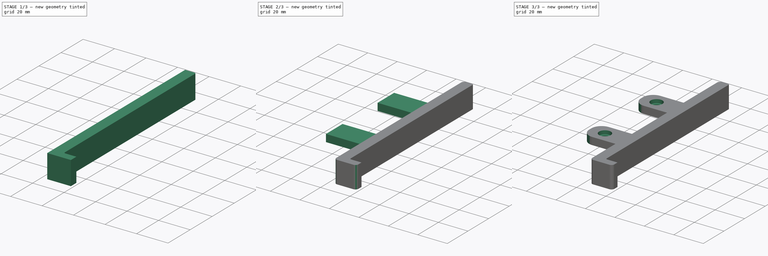
[diagram: build sequence overview — one tinted view per stage of 3, left to right]
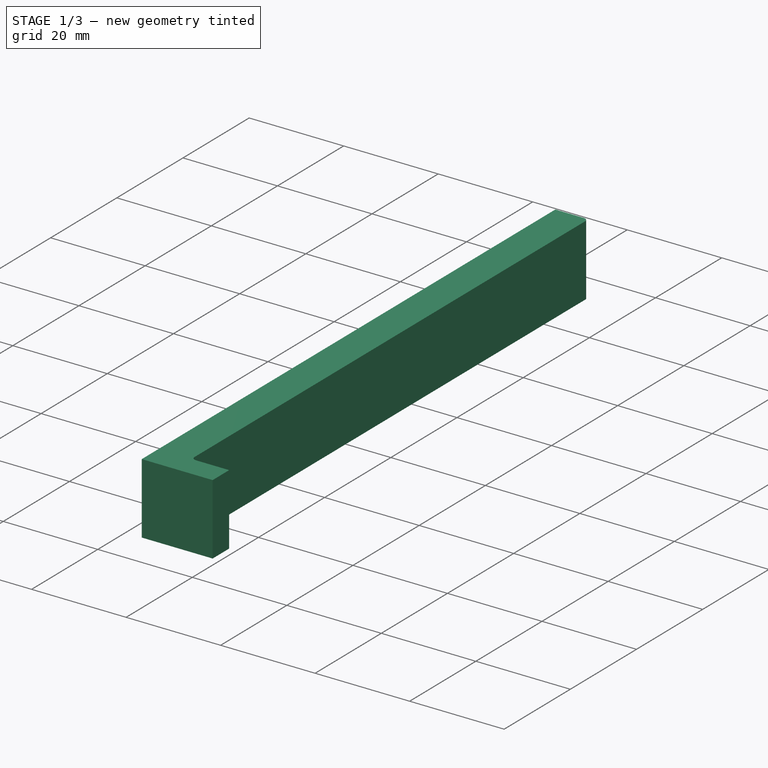
[diagram: stage 1 of 3 — iso view after this stage's code; geometry added in this stage tinted green]
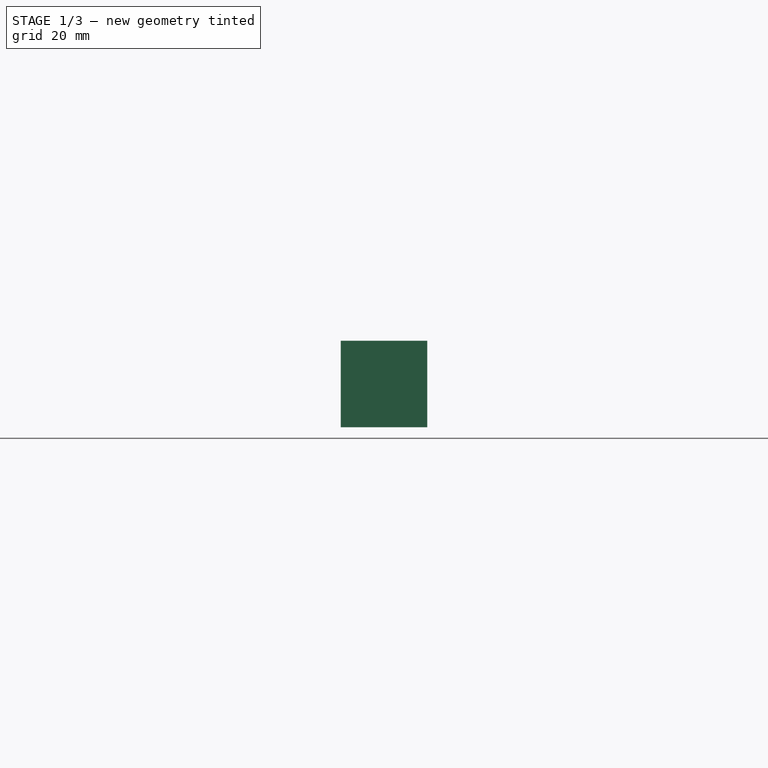
[diagram: stage 1 of 3 — front view after this stage's code; geometry added in this stage tinted green]
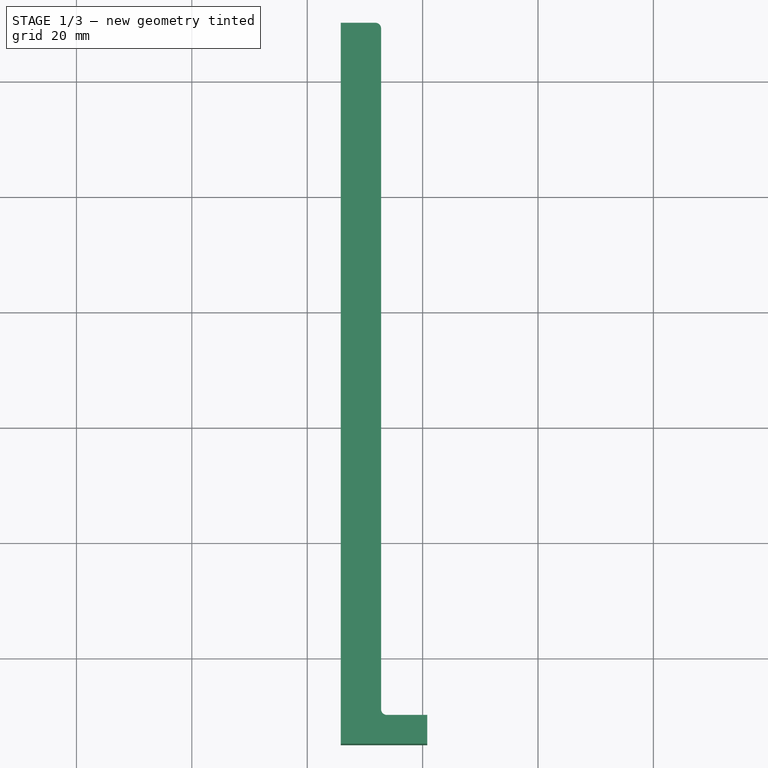
[diagram: stage 1 of 3 — top view after this stage's code; geometry added in this stage tinted green]
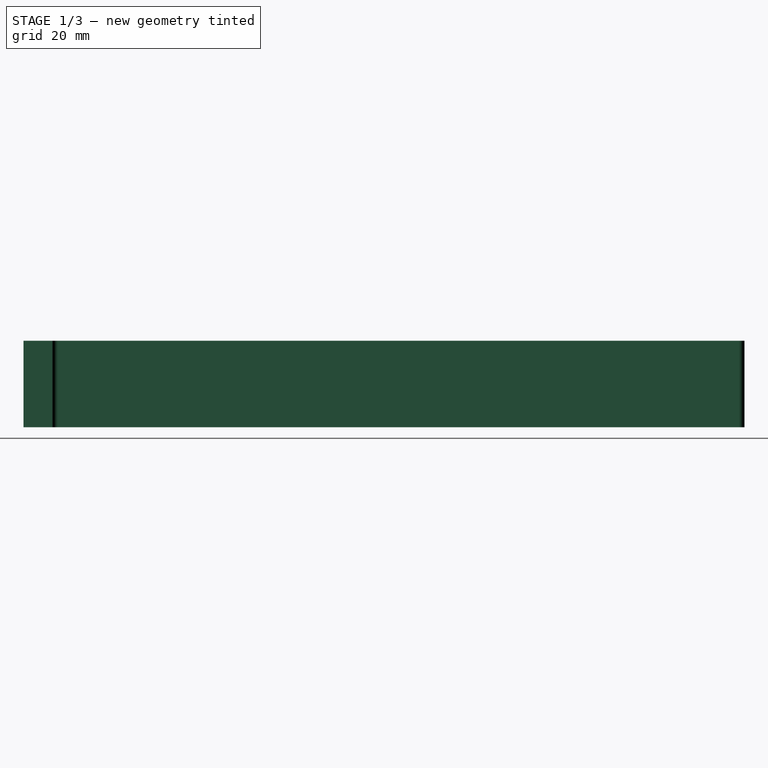
[diagram: stage 1 of 3 — right view after this stage's code; geometry added in this stage tinted green]
FCSTD DOCUMENT  (FreeCAD 1.1R20260414 (Git shallow))
Label: Unnamed2
License: All rights reserved
LicenseURL: https://en.wikipedia.org/wiki/All_rights_reserved
objects: PartDesign::Fillet×4, Sketcher::SketchObject×3, PartDesign::Pad×2, App::Point×1, PartDesign::Hole×1, PartDesign::Body×1
note: 28 computed .brp shape members not serialized (recipe doc carries the construction recipe); baked Part::Feature solids carry a one-line shape summary decoded from their .brp

FEATURE [App::Point] Origin001
  Role = Origin
FEATURE [Sketcher::SketchObject] Sketch
  ArcFitTolerance = 1e-06
  AttachmentSupport = -> [Origin]
  ExternalTypes = [0]
  FullyConstrained = true
  MakeInternals = false
  MapMode = 5
  _ExternalGeoVersion = 1
  sketch-geometry (7):
    g0: LineSegment StartX=32.81 StartY=-70 StartZ=0 EndX=32.81 EndY=50 EndZ=0
    g1: LineSegment StartX=32.81 StartY=50 StartZ=0 EndX=25.81 EndY=50 EndZ=0
    g2: LineSegment StartX=25.81 StartY=50 StartZ=0 EndX=25.81 EndY=-75 EndZ=0
    g3: GeomPoint [constr] X=0 Y=0 Z=0
    g4: LineSegment StartX=25.81 StartY=-75 StartZ=0 EndX=40.81 EndY=-75 EndZ=0
    g5: LineSegment StartX=40.81 StartY=-75 StartZ=0 EndX=40.81 EndY=-70 EndZ=0
    g6: LineSegment StartX=40.81 StartY=-70 StartZ=0 EndX=32.81 EndY=-70 EndZ=0
  constraints (19):
    c: Coincident(g0,g1)
    c: Coincident(g1,g2)
    c: Horizontal(g1)
    c: Vertical(g0)
    c: Vertical(g2)
    c: Coincident(g3,g-1)
    c: Coincident(g4,g5)
    c: Coincident(g5,g6)
    c: Coincident(g6,g0)
    c: Horizontal(g6)
    c: Parallel(g4,g6)
    c: Coincident(g2,g4)
    c: DistanceY(g2,g2) = 125
    c: DistanceY(g0,g0) = 120
    c: Distance(g1,g1) = 7
    c: Distance(g-2,g2) = 25.81
    c: Distance(g4,g-2) = 40.81
    c: Distance(g5,g-2) = 40.81
    c: Distance(g-1,g6) = 70
FEATURE [PartDesign::Pad] Pad
  Direction = (0,0,1)
  Length = 15
  Length2 = 10
  Profile = -> Sketch
  ReferenceAxis = -> Sketch [N_Axis]
  Refine = true
  SideType = 0
  Suppressed = false
  Type = 0
  Type2 = 0
FEATURE [PartDesign::Fillet] Fillet
  Base = -> Pad [Edge1,Edge2]
  BaseFeature = -> Pad
  Radius = 1
  Refine = true
  SupportTransform = false
  Suppressed = false
  UseAllEdges = false
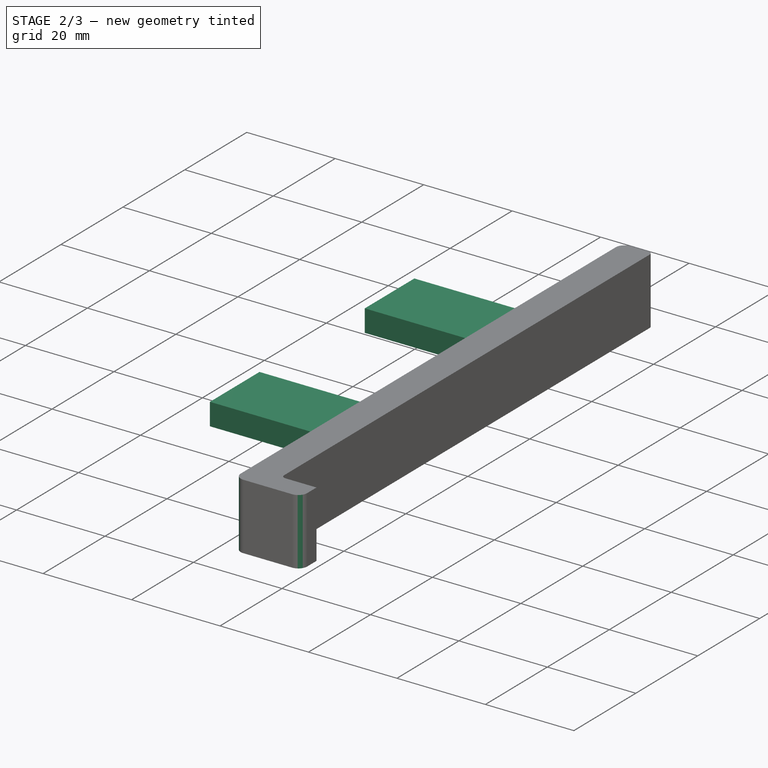
[diagram: stage 2 of 3 — iso view after this stage's code; geometry added in this stage tinted green]
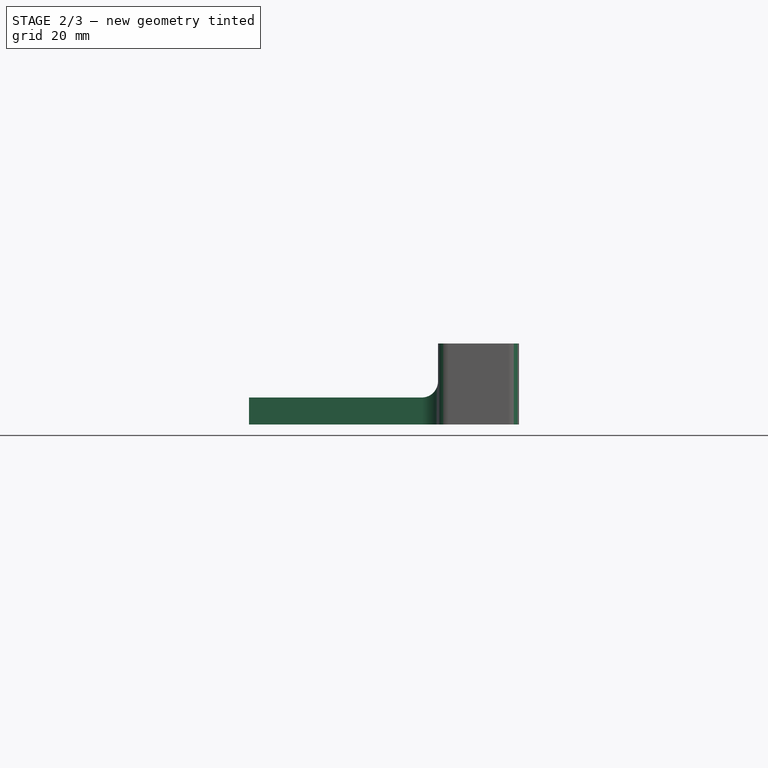
[diagram: stage 2 of 3 — front view after this stage's code; geometry added in this stage tinted green]
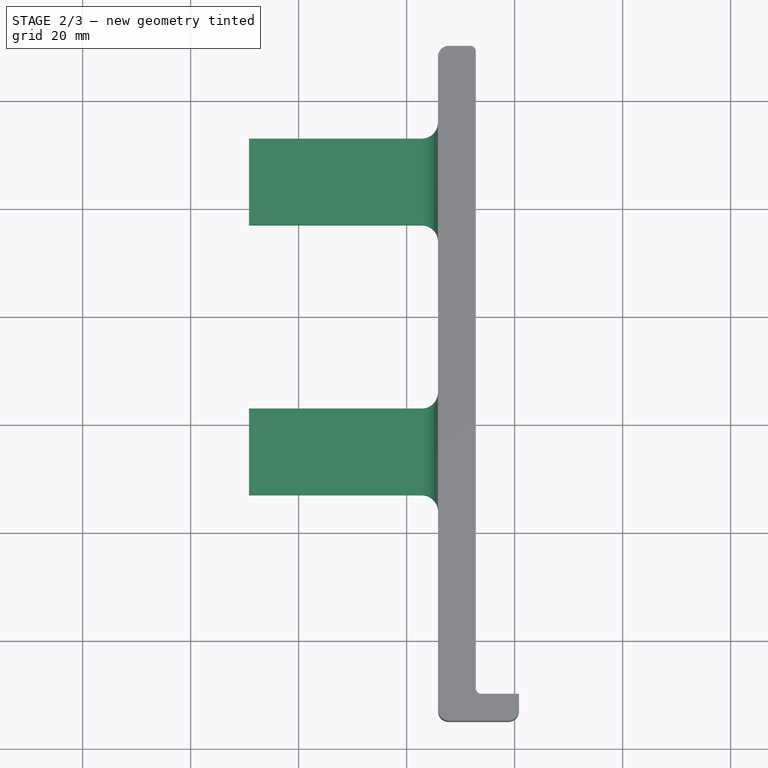
[diagram: stage 2 of 3 — top view after this stage's code; geometry added in this stage tinted green]
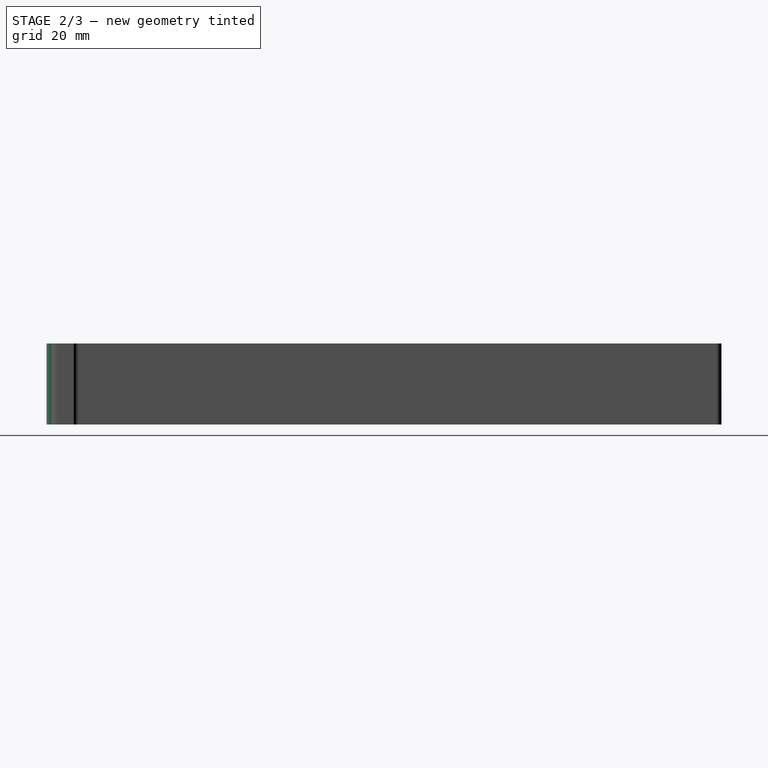
[diagram: stage 2 of 3 — right view after this stage's code; geometry added in this stage tinted green]
FEATURE [PartDesign::Fillet] Fillet001
  Base = -> Fillet [Edge24,Edge23,Edge22]
  BaseFeature = -> Fillet
  Radius = 2
  Refine = true
  SupportTransform = false
  Suppressed = false
  UseAllEdges = false
FEATURE [Sketcher::SketchObject] Sketch001
  ArcFitTolerance = 1e-06
  AttachmentSupport = -> [Origin]
  ExternalTypes = [0,0]
  FullyConstrained = true
  MakeInternals = false
  MapMode = 5
  _ExternalGeoVersion = 1
  sketch-geometry (8):
    g0: LineSegment StartX=25.81 StartY=-33 StartZ=0 EndX=25.81 EndY=-17 EndZ=0
    g1: LineSegment StartX=25.81 StartY=-17 StartZ=0 EndX=-9.19 EndY=-17 EndZ=0
    g2: LineSegment StartX=-9.19 StartY=-17 StartZ=0 EndX=-9.19 EndY=-33 EndZ=0
    g3: LineSegment StartX=-9.19 StartY=-33 StartZ=0 EndX=25.81 EndY=-33 EndZ=0
    g4: LineSegment StartX=25.81 StartY=17 StartZ=0 EndX=25.81 EndY=33 EndZ=0
    g5: LineSegment StartX=25.81 StartY=33 StartZ=0 EndX=-9.19 EndY=33 EndZ=0
    g6: LineSegment StartX=-9.19 StartY=33 StartZ=0 EndX=-9.19 EndY=17 EndZ=0
    g7: LineSegment StartX=-9.19 StartY=17 StartZ=0 EndX=25.81 EndY=17 EndZ=0
  constraints (24):
    c: Coincident(g0,g1)
    c: Coincident(g1,g2)
    c: Coincident(g2,g3)
    c: Coincident(g3,g0)
    c: Vertical(g0)
    c: Vertical(g2)
    c: Distance(g2,g2) = 16
    c: Distance(g3,g3) = 35
    c: Horizontal(g1)
    c: Horizontal(g3)
    c: Coincident(g4,g5)
    c: Coincident(g5,g6)
    c: Coincident(g6,g7)
    c: Coincident(g7,g4)
    c: Vertical(g4)
    c: Vertical(g6)
    c: Horizontal(g5)
    c: Horizontal(g7)
    c: Distance(g6,g6) = 16
    c: Distance(g1,g7) = 34
    c: DistanceX(g5,g5) = 35
    c: Distance(g-2,g0) = 25.81
    c: Distance(g-2,g4) = 25.81
    c: Distance(g-1,g3) = 33
FEATURE [PartDesign::Pad] Pad001
  BaseFeature = -> Fillet001
  Direction = (0,0,1)
  Length = 5
  Length2 = 10
  Profile = -> Sketch001
  ReferenceAxis = -> Sketch001 [N_Axis]
  Refine = true
  SideType = 0
  Suppressed = false
  Type = 0
  Type2 = 0
FEATURE [PartDesign::Fillet] Fillet002
  Base = -> Pad001 [Edge18,Edge17,Edge16,Edge13,Edge14,Edge12]
  BaseFeature = -> Pad001
  Radius = 3
  Refine = true
  SupportTransform = false
  Suppressed = false
  UseAllEdges = false
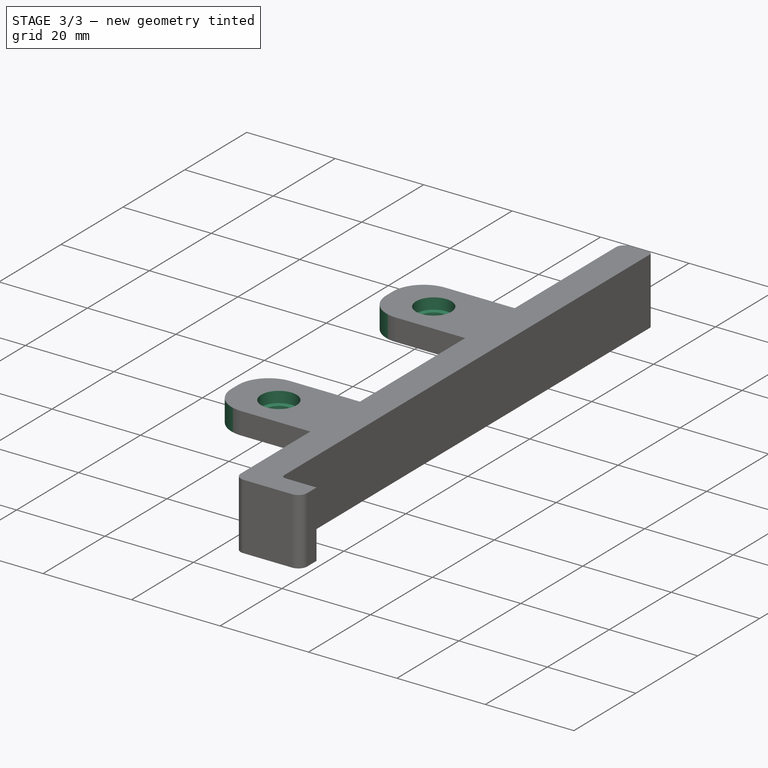
[diagram: stage 3 of 3 — iso view after this stage's code; geometry added in this stage tinted green]
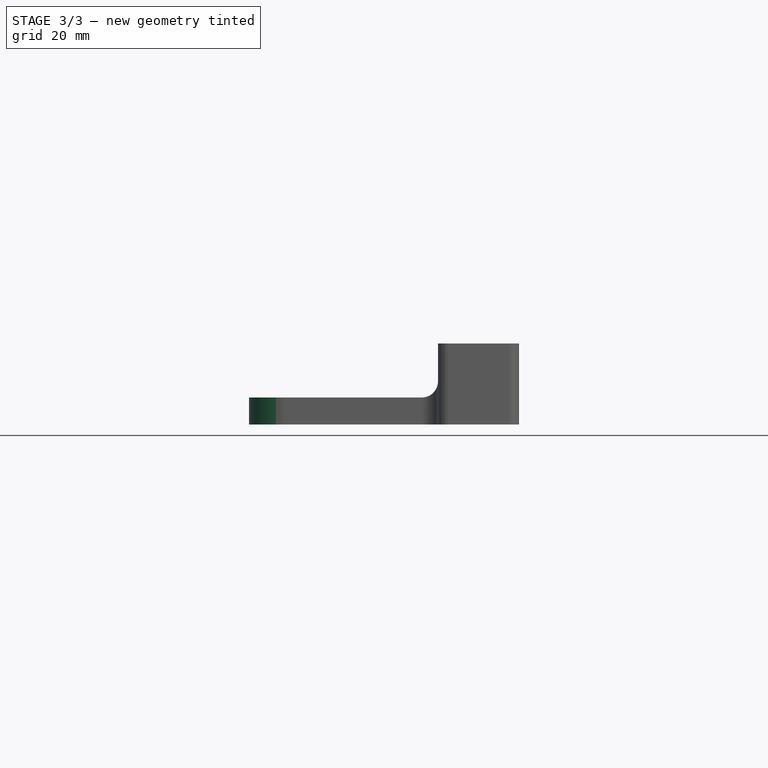
[diagram: stage 3 of 3 — front view after this stage's code; geometry added in this stage tinted green]
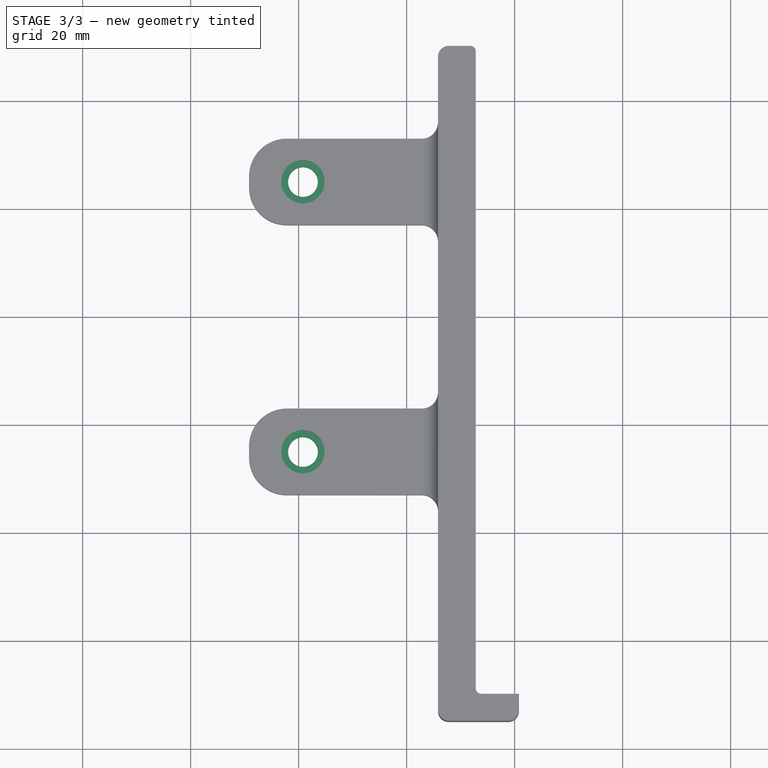
[diagram: stage 3 of 3 — top view after this stage's code; geometry added in this stage tinted green]
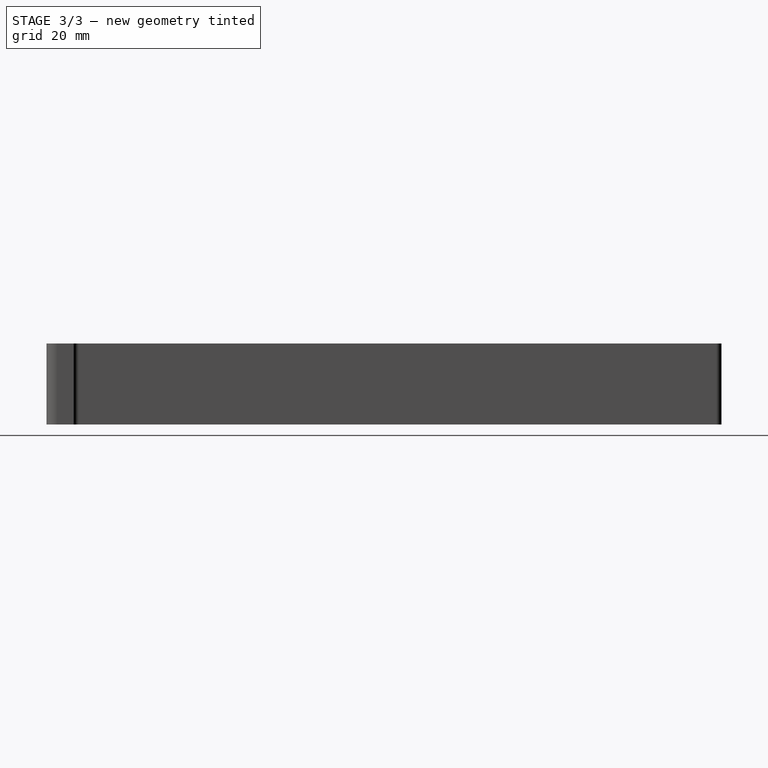
[diagram: stage 3 of 3 — right view after this stage's code; geometry added in this stage tinted green]
FEATURE [PartDesign::Fillet] Fillet003
  Base = -> Fillet002 [Edge55,Edge66,Edge58,Edge69]
  BaseFeature = -> Fillet002
  Radius = 7
  Refine = true
  SupportTransform = false
  Suppressed = false
  UseAllEdges = false
FEATURE [Sketcher::SketchObject] Sketch002
  ArcFitTolerance = 1e-06
  AttachmentSupport = -> [Fillet003]
  ExternalTypes = [0]
  FullyConstrained = true
  MakeInternals = false
  MapMode = 5
  Placement = pos=(0,0,5) rot=(0,0,1;0rad)
  _ExternalGeoVersion = 1
  sketch-geometry (2):
    g0: Circle CenterX=0.8 CenterY=-25 CenterZ=0 NormalX=0 NormalY=0 NormalZ=1 AngleXU=0 Radius=2.5
    g1: Circle CenterX=0.8 CenterY=25 CenterZ=0 NormalX=0 NormalY=0 NormalZ=1 AngleXU=0 Radius=2.5
  constraints (6):
    c: Diameter(g0) = 5
    c: Equal(g1,g0)
    c: Distance(g0,g-2) = 0.8
    c: Distance(g1,g-2) = 0.8
    c: DistanceY(g0,g-1) = 25
    c: DistanceY(g-1,g1) = 25
FEATURE [PartDesign::Hole] Hole
  BaseFeature = -> Fillet003
  BaseProfileType = 7
  CustomThreadClearance = 0
  Depth = 5
  DepthType = 0
  Diameter = 5.5
  DrillForDepth = false
  DrillPoint = 1
  DrillPointAngle = 118
  HoleCutCountersinkAngle = 90
  HoleCutCustomValues = false
  HoleCutDepth = 2.5
  HoleCutDiameter = 8
  HoleCutType = 1
  ModelThread = false
  Profile = -> Sketch002
  Refine = true
  Suppressed = false
  Tapered = false
  TaperedAngle = 90
  ThreadClass = 0
  ThreadDepth = 5
  ThreadDepthType = 0
  ThreadDiameter = 5
  ThreadDirection = 0
  ThreadFit = 0
  ThreadSize = 13
  ThreadType = 1
  Threaded = false
  UseCustomThreadClearance = false
FEATURE [PartDesign::Body] Body
  AllowCompound = true
  Group = -> [Sketch,Pad,Fillet,Fillet001,Sketch001,Pad001,Fillet002,Fillet003,Sketch002,Hole]
  Origin = -> Origin
  Tip = -> Hole
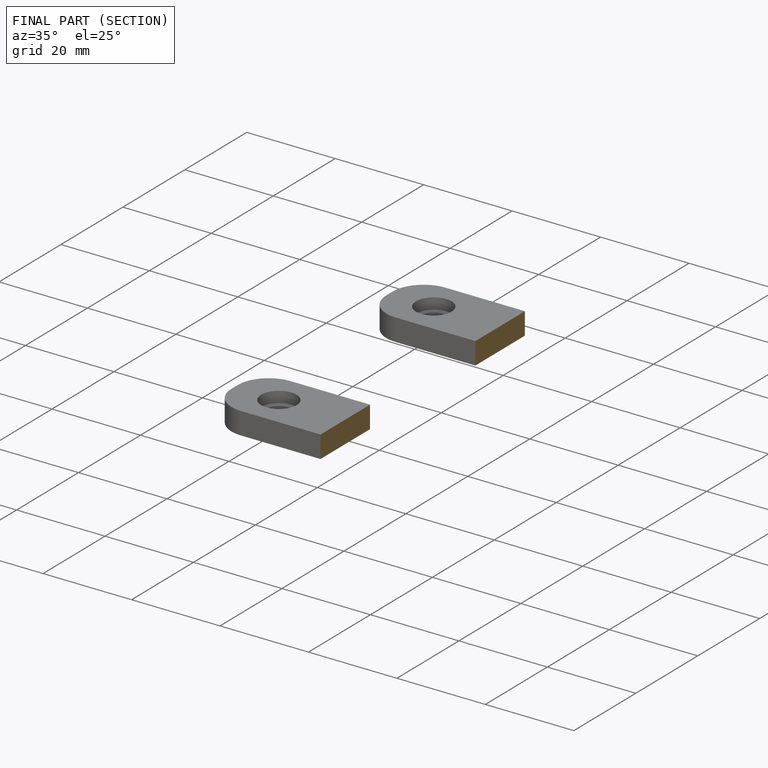
[diagram: finished part — half-section view (interior)]
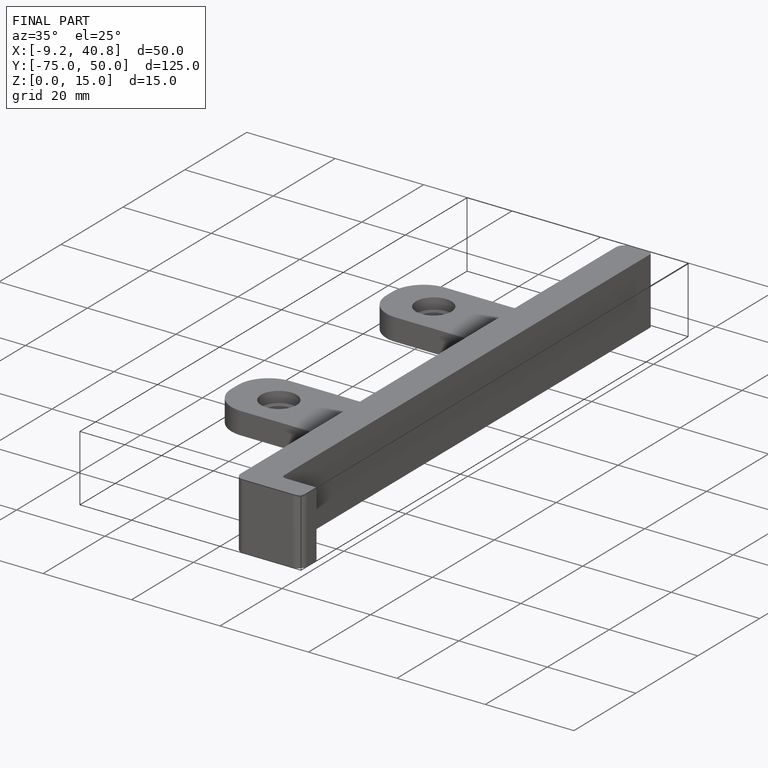
[diagram: finished part — iso view with bounding-box wireframe]
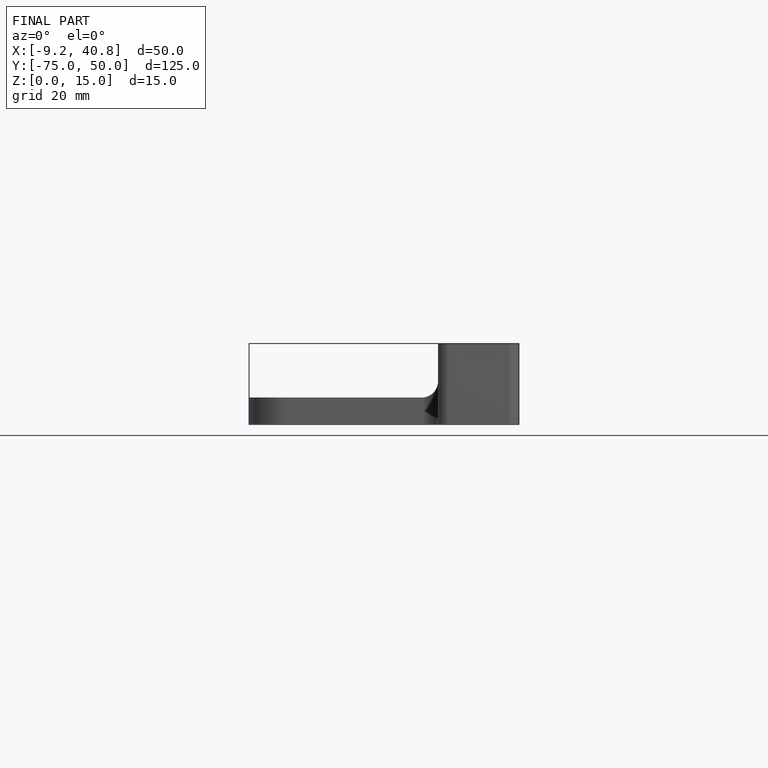
[diagram: finished part — front view with bounding-box wireframe]
